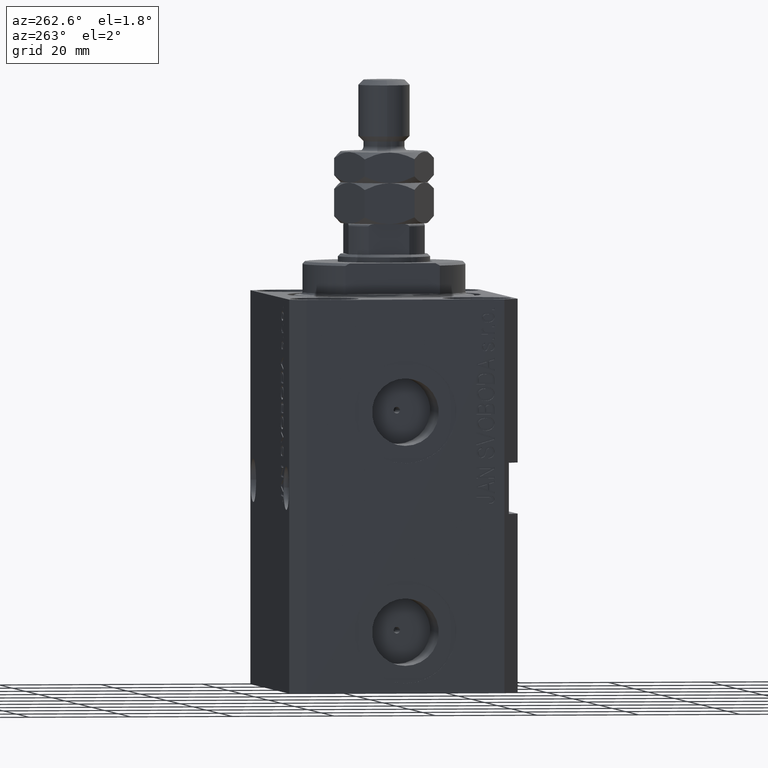
[diagram: clean part render]
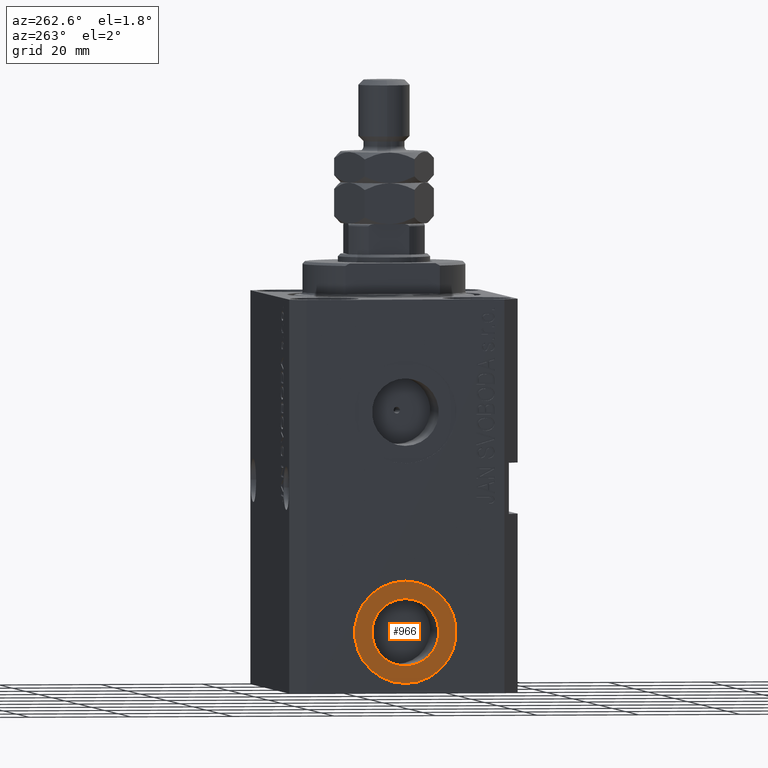
[diagram: same view with one face highlighted and labeled with its STEP entity id]
A machine part, auxiliary view. The second image highlights one B-rep face of the part: STEP entity #966.
In plain terms, the highlighted planar face has unit normal (-1, 0, 0).
Its self-contained STEP definition (entity closure, byte-faithful):
#966 = ADVANCED_FACE ( 'NONE', ( #19923, #41311 ), #23857, .T. ) ;
#3298 = CARTESIAN_POINT ( 'NONE',  ( -32.39999999999650271, -5.714247104759875318E-15, -75.00000000000000000 ) ) ;
#5071 = DIRECTION ( 'NONE',  ( -1.000000000000000000, 0.000000000000000000, 0.000000000000000000 ) ) ;
#5935 = VERTEX_POINT ( 'NONE', #44596 ) ;
#6674 = DIRECTION ( 'NONE',  ( 0.000000000000000000, 0.000000000000000000, 1.000000000000000000 ) ) ;
#9687 = VERTEX_POINT ( 'NONE', #36379 ) ;
#10680 = EDGE_LOOP ( 'NONE', ( #22534, #15072 ) ) ;
#13198 = ORIENTED_EDGE ( 'NONE', *, *, #30791, .F. ) ;
#15072 = ORIENTED_EDGE ( 'NONE', *, *, #21141, .T. ) ;
#16519 = AXIS2_PLACEMENT_3D ( 'NONE', #26889, #16653, #6674 ) ;
#16653 = DIRECTION ( 'NONE',  ( -1.000000000000000000, 0.000000000000000000, 0.000000000000000000 ) ) ;
#18032 = AXIS2_PLACEMENT_3D ( 'NONE', #19787, #23036, #20018 ) ;
#19787 = CARTESIAN_POINT ( 'NONE',  ( -32.39999999999650271, -6.938893903907228378E-15, -65.00000000000000000 ) ) ;
#19923 = FACE_BOUND ( 'NONE', #33931, .T. ) ;
#20018 = DIRECTION ( 'NONE',  ( 0.000000000000000000, 0.000000000000000000, 1.000000000000000000 ) ) ;
#21141 = EDGE_CURVE ( 'NONE', #29136, #5935, #43312, .T. ) ;
#22534 = ORIENTED_EDGE ( 'NONE', *, *, #36672, .T. ) ;
#23036 = DIRECTION ( 'NONE',  ( -1.000000000000000000, 0.000000000000000000, 0.000000000000000000 ) ) ;
#23721 = DIRECTION ( 'NONE',  ( -1.000000000000000000, 0.000000000000000000, 0.000000000000000000 ) ) ;
#23857 = PLANE ( 'NONE',  #16519 ) ;
#26320 = ORIENTED_EDGE ( 'NONE', *, *, #39892, .F. ) ;
#26527 = AXIS2_PLACEMENT_3D ( 'NONE', #37138, #5071, #33416 ) ;
#26889 = CARTESIAN_POINT ( 'NONE',  ( -32.39999999999650271, -6.938893903907228378E-15, -65.00000000000000000 ) ) ;
#27861 = AXIS2_PLACEMENT_3D ( 'NONE', #32811, #23721, #34886 ) ;
#29136 = VERTEX_POINT ( 'NONE', #3298 ) ;
#30080 = CIRCLE ( 'NONE', #27861, 6.580000000000002736 ) ;
#30791 = EDGE_CURVE ( 'NONE', #36523, #9687, #30080, .T. ) ;
#31067 = DIRECTION ( 'NONE',  ( -1.000000000000000000, 0.000000000000000000, 0.000000000000000000 ) ) ;
#32811 = CARTESIAN_POINT ( 'NONE',  ( -32.39999999999650271, -6.938893903907228378E-15, -65.00000000000000000 ) ) ;
#33416 = DIRECTION ( 'NONE',  ( 0.000000000000000000, 0.000000000000000000, 1.000000000000000000 ) ) ;
#33931 = EDGE_LOOP ( 'NONE', ( #26320, #13198 ) ) ;
#34886 = DIRECTION ( 'NONE',  ( 0.000000000000000000, 0.000000000000000000, 1.000000000000000000 ) ) ;
#36218 = CARTESIAN_POINT ( 'NONE',  ( -32.39999999999650271, -6.133076310068269336E-15, -71.57999999999999829 ) ) ;
#36379 = CARTESIAN_POINT ( 'NONE',  ( -32.39999999999650271, -6.938893903907228378E-15, -58.42000000000000171 ) ) ;
#36523 = VERTEX_POINT ( 'NONE', #36218 ) ;
#36672 = EDGE_CURVE ( 'NONE', #5935, #29136, #45865, .T. ) ;
#36931 = AXIS2_PLACEMENT_3D ( 'NONE', #38269, #31067, #38506 ) ;
#37138 = CARTESIAN_POINT ( 'NONE',  ( -32.39999999999650271, -6.938893903907228378E-15, -65.00000000000000000 ) ) ;
#38269 = CARTESIAN_POINT ( 'NONE',  ( -32.39999999999650271, -6.938893903907228378E-15, -65.00000000000000000 ) ) ;
#38506 = DIRECTION ( 'NONE',  ( 0.000000000000000000, 0.000000000000000000, 1.000000000000000000 ) ) ;
#39892 = EDGE_CURVE ( 'NONE', #9687, #36523, #41379, .T. ) ;
#41311 = FACE_OUTER_BOUND ( 'NONE', #10680, .T. ) ;
#41379 = CIRCLE ( 'NONE', #26527, 6.580000000000002736 ) ;
#43312 = CIRCLE ( 'NONE', #18032, 9.999999999999994671 ) ;
#44596 = CARTESIAN_POINT ( 'NONE',  ( -32.39999999999650271, -6.938893903907228378E-15, -55.00000000000000711 ) ) ;
#45865 = CIRCLE ( 'NONE', #36931, 9.999999999999994671 ) ;